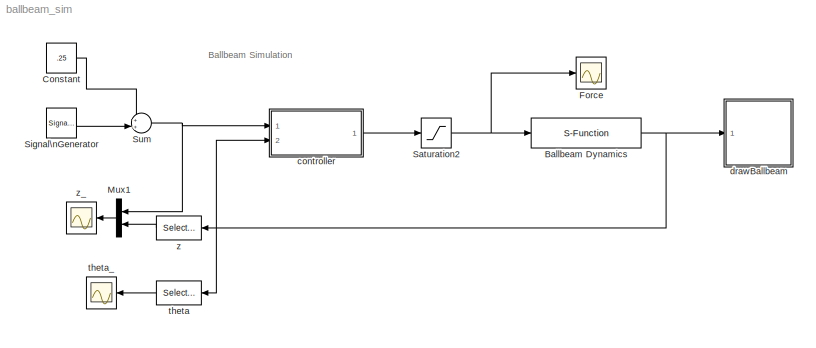
MODEL ballbeam_sim
KIND model
BLOCK [S-Function] Ballbeam Dynamics
  EnableBusSupport = off
  FunctionName = ballbeam_dynamics
  Parameters = AP
  Ports = [1, 1]
  SID = 11
BLOCK [Constant] Constant
  SID = 51
  Value = .25
BLOCK [Scope] Force
  DataFormat = StructureWithTime
  Floating = off
  LimitDataPoints = off
  NumInputPorts = 1
  Ports = [1]
  SID = 21
  SampleTime = 0
  ShowLegends = off
  TimeRange = 100
  YMax = 12.25
  YMin = 9
BLOCK [Mux] Mux1
  DisplayOption = bar
  Inputs = 2
  Ports = [2, 1]
  SID = 24
BLOCK [Saturate] Saturation2
  InputPortMap = u0
  LowerLimit = -AP.F_max
  Ports = [1, 1]
  SID = 37
  UpperLimit = AP.F_max
BLOCK [SignalGenerator] Signal\nGenerator
  Amplitude = .125
  Frequency = .02
  Ports = [0, 1]
  SID = 54
  WaveForm = square
BLOCK [Sum] Sum
  IconShape = round
  InputSameDT = off
  Inputs = ++|
  OutDataTypeStr = Inherit: Inherit via internal rule
  Ports = [2, 1]
  SID = 55
  SaturateOnIntegerOverflow = off
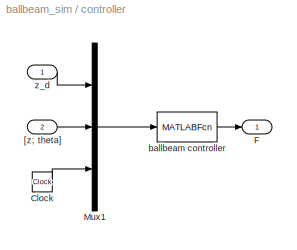
BLOCK [SubSystem] controller
  FunctionWithSeparateData = off
  MaskHideContents = off
  MinAlgLoopOccurrences = off
  Opaque = off
  Ports = [2, 1]
  PropExecContextOutsideSubsystem = off
  RTWSystemCode = Auto
  RequestExecContextInheritance = off
  SID = 38
BLOCK [Clock] controller/Clock
  SID = 41
BLOCK [Outport] controller/F
  IconDisplay = Port number
  SID = 44
BLOCK [Mux] controller/Mux1
  DisplayOption = bar
  Inputs = 3
  Ports = [3, 1]
  SID = 42
BLOCK [Inport] controller/[z; theta]
  IconDisplay = Port number
  Port = 2
  SID = 40
BLOCK [MATLABFcn] controller/ballbeam controller
  MATLABFcn = ballbeam_ctrl(u,P)
  OutputDimensions = 1
  Ports = [1, 1]
  SID = 43
  SampleTime = P.Ts
BLOCK [Inport] controller/z_d
  IconDisplay = Port number
  SID = 39
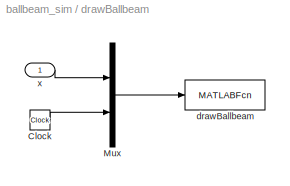
BLOCK [SubSystem] drawBallbeam
  FunctionWithSeparateData = off
  MaskHideContents = off
  MinAlgLoopOccurrences = off
  Opaque = off
  Ports = [1]
  PropExecContextOutsideSubsystem = off
  RTWSystemCode = Auto
  RequestExecContextInheritance = off
  SID = 4
BLOCK [Clock] drawBallbeam/Clock
  SID = 6
BLOCK [Mux] drawBallbeam/Mux
  DisplayOption = bar
  Inputs = 2
  Ports = [2, 1]
  SID = 7
BLOCK [MATLABFcn] drawBallbeam/drawBallbeam
  MATLABFcn = drawBallBeam(u,L,R)
  OutputDimensions = 0
  Ports = [1]
  SID = 8
  SampleTime = 0.01
BLOCK [Inport] drawBallbeam/x
  IconDisplay = Port number
  SID = 5
BLOCK [Selector] theta
  IndexOptions = Index vector (dialog)
  Indices = [1]
  InputPortWidth = 2
  OutputSizes = 1
  Ports = [1, 1]
  SID = 46
BLOCK [Scope] theta_
  DataFormat = StructureWithTime
  Floating = off
  LimitDataPoints = off
  NumInputPorts = 1
  Ports = [1]
  SID = 23
  SampleTime = 0
  SaveName = ScopeData1
  ShowLegends = off
  TimeRange = 100
  YMax = 0.0025
  YMin = -0.0225
BLOCK [Selector] z
  IndexOptions = Index vector (dialog)
  Indices = [2]
  InputPortWidth = 2
  OutputSizes = 1
  Ports = [1, 1]
  SID = 45
BLOCK [Scope] z_
  DataFormat = StructureWithTime
  Floating = off
  LimitDataPoints = off
  NumInputPorts = 1
  Ports = [1]
  SID = 25
  SampleTime = 0
  SaveName = ScopeData2
  ShowLegends = off
  TimeRange = 100
  YMax = 0.5
  YMin = 2.77556e-17
ANNOTATION (root): Ballbeam Simulation
NET Ballbeam Dynamics:1 -> controller:2, drawBallbeam:1, theta:1, z:1
LINE Constant:1 -> Sum:1
LINE Mux1:1 -> z_:1
NET Saturation2:1 -> Ballbeam Dynamics:1, Force:1
LINE Signal\nGenerator:1 -> Sum:2
NET Sum:1 -> Mux1:1, controller:1
LINE controller/Clock:1 -> controller/Mux1:3
LINE controller/Mux1:1 -> controller/ballbeam controller:1
LINE controller/[z; theta]:1 -> controller/Mux1:2
LINE controller/ballbeam controller:1 -> controller/F:1
LINE controller/z_d:1 -> controller/Mux1:1
LINE controller:1 -> Saturation2:1
LINE drawBallbeam/Clock:1 -> drawBallbeam/Mux:2
LINE drawBallbeam/Mux:1 -> drawBallbeam/drawBallbeam:1
LINE drawBallbeam/x:1 -> drawBallbeam/Mux:1
LINE theta:1 -> theta_:1
LINE z:1 -> Mux1:2
note: NET lines group one-source signal fan-out (src -> all destinations, sorted); 1:1 wires keep LINE
